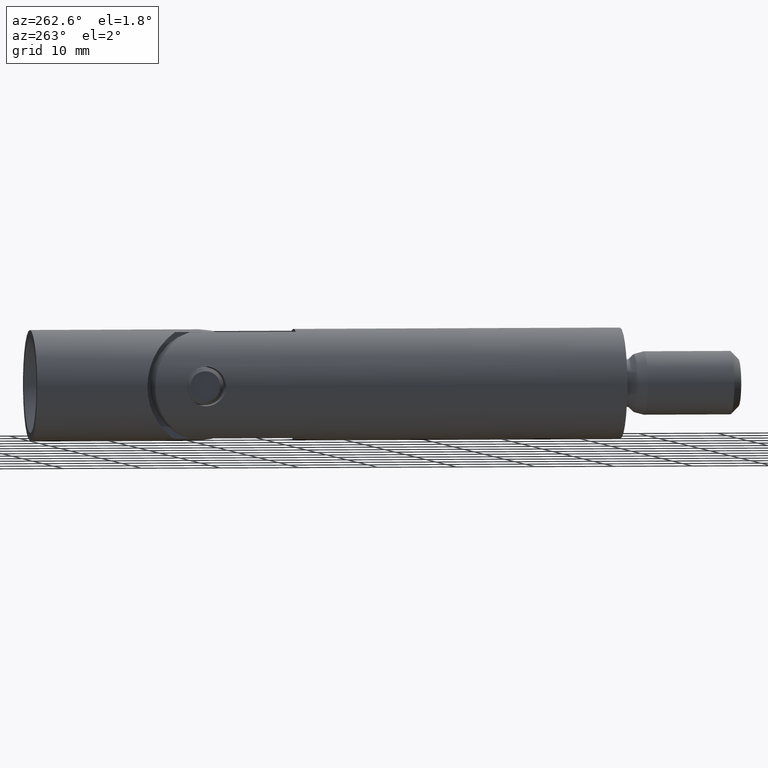
[diagram: clean part render]
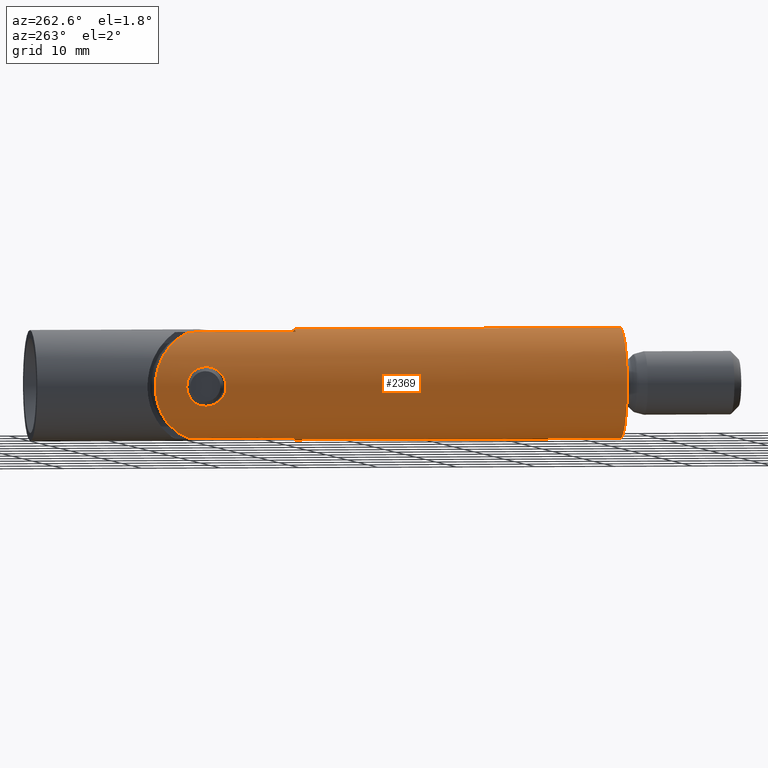
[diagram: same view with one face highlighted and labeled with its STEP entity id]
A machine part, auxiliary view. The second image highlights one B-rep face of the part: STEP entity #2369.
In plain terms, the highlighted cylindrical surface (partial cylindrical patch) has radius 7 mm, axis along (0, -1, 0).
Its self-contained STEP definition (entity closure, byte-faithful):
#25 = EDGE_CURVE ( 'NONE', #102, #1722, #1996, .T. ) ;
#48 = CARTESIAN_POINT ( 'NONE',  ( 0.0000000000000000000, 41.50000000000000700, 0.0000000000000000000 ) ) ;
#65 = CARTESIAN_POINT ( 'NONE',  ( -6.538348415311013200, 53.33519401467425100, -2.499999999999996000 ) ) ;
#96 = EDGE_CURVE ( 'NONE', #746, #1180, #1838, .T. ) ;
#102 = VERTEX_POINT ( 'NONE', #954 ) ;
#110 = CARTESIAN_POINT ( 'NONE',  ( -6.630565988376038600, 52.38798107305262200, -2.244996194563280100 ) ) ;
#118 = CARTESIAN_POINT ( 'NONE',  ( -6.833173121554277300, 51.51262594313612200, -1.525347122019572000 ) ) ;
#128 = CARTESIAN_POINT ( 'NONE',  ( -6.802524204305409900, 51.61943172811926000, 1.655173309233356300 ) ) ;
#138 = CARTESIAN_POINT ( 'NONE',  ( -6.713002675042695000, 55.02700317868689000, 1.986084006136937600 ) ) ;
#139 = VERTEX_POINT ( 'NONE', #2750 ) ;
#152 = CARTESIAN_POINT ( 'NONE',  ( -6.538348415311010500, 53.66456764569719700, 2.499999999999995600 ) ) ;
#168 = CARTESIAN_POINT ( 'NONE',  ( -6.803124002926330700, 55.38280020444109700, -1.652799647992184300 ) ) ;
#261 = ORIENTED_EDGE ( 'NONE', *, *, #25, .F. ) ;
#291 = CARTESIAN_POINT ( 'NONE',  ( -2.000000000000000000, 54.99999999999999300, -6.708203932499382700 ) ) ;
#298 = CARTESIAN_POINT ( 'NONE',  ( -10.18181818181819800, 63.18181818181818000, -4.268857047954150600 ) ) ;
#313 = CARTESIAN_POINT ( 'NONE',  ( -6.713293999746592400, 51.97163285381493100, -1.985134064349434200 ) ) ;
#339 = CARTESIAN_POINT ( 'NONE',  ( -6.538348415311013200, 53.33534744222108500, 2.499999999999995600 ) ) ;
#366 = DIRECTION ( 'NONE',  ( -0.0000000000000000000, 1.000000000000000000, -0.0000000000000000000 ) ) ;
#387 = EDGE_CURVE ( 'NONE', #455, #1879, #1490, .T. ) ;
#400 = VERTEX_POINT ( 'NONE', #1655 ) ;
#455 = VERTEX_POINT ( 'NONE', #1449 ) ;
#520 = EDGE_CURVE ( 'NONE', #1180, #139, #2311, .T. ) ;
#524 = EDGE_LOOP ( 'NONE', ( #1591, #1098, #1941, #818, #740, #1916, #1375, #1412 ) ) ;
#529 = CARTESIAN_POINT ( 'NONE',  ( -6.713011081320540400, 51.96268946594810200, 1.997803583214680800 ) ) ;
#534 = CARTESIAN_POINT ( 'NONE',  ( 0.0000000000000000000, 41.50000000000000700, -7.000000000000000000 ) ) ;
#535 = EDGE_CURVE ( 'NONE', #400, #2773, #803, .T. ) ;
#545 = CARTESIAN_POINT ( 'NONE',  ( -6.586688630397273600, 52.68972863383668000, 2.370635640661695300 ) ) ;
#547 = CARTESIAN_POINT ( 'NONE',  ( -7.000003609365455400, 56.00001010622330000, -0.1639442467922991600 ) ) ;
#549 = ORIENTED_EDGE ( 'NONE', *, *, #2404, .F. ) ;
#550 = CARTESIAN_POINT ( 'NONE',  ( -6.538348415311011400, 53.50000000000000700, 2.499999999999995100 ) ) ;
#558 = CARTESIAN_POINT ( 'NONE',  ( -6.803060434179654300, 51.61748135266695700, -1.652999685165231100 ) ) ;
#574 = LINE ( 'NONE', #1335, #601 ) ;
#578 = EDGE_CURVE ( 'NONE', #2771, #139, #574, .T. ) ;
#585 = CARTESIAN_POINT ( 'NONE',  ( -6.630891678195562900, 54.61417307946678100, 2.244056500775114300 ) ) ;
#593 = CARTESIAN_POINT ( 'NONE',  ( -6.971294840662166900, 55.91865224520973500, -0.6537964533232129000 ) ) ;
#601 = VECTOR ( 'NONE', #1095, 1000.000000000000000 ) ;
#740 = ORIENTED_EDGE ( 'NONE', *, *, #535, .F. ) ;
#743 = CARTESIAN_POINT ( 'NONE',  ( -2.000000000000000000, 54.99999999999999300, -6.708203932499382700 ) ) ;
#745 = CARTESIAN_POINT ( 'NONE',  ( -6.994088657715217900, 51.01641835356784300, -0.3295360864567826700 ) ) ;
#746 = VERTEX_POINT ( 'NONE', #2073 ) ;
#760 = DIRECTION ( 'NONE',  ( 0.0000000000000000000, 0.0000000000000000000, -1.000000000000000000 ) ) ;
#763 = AXIS2_PLACEMENT_3D ( 'NONE', #1886, #967, #760 ) ;
#773 = VECTOR ( 'NONE', #1024, 1000.000000000000000 ) ;
#796 = CARTESIAN_POINT ( 'NONE',  ( -6.887599654653780800, 55.66713404354823100, 1.256961725174125000 ) ) ;
#803 = LINE ( 'NONE', #1561, #1527 ) ;
#818 = ORIENTED_EDGE ( 'NONE', *, *, #1300, .F. ) ;
#819 = EDGE_CURVE ( 'NONE', #1879, #746, #1693, .T. ) ;
#838 = CARTESIAN_POINT ( 'NONE',  ( -6.742829180491090000, 55.15172206134482700, -1.883745608704455500 ) ) ;
#932 = CARTESIAN_POINT ( 'NONE',  ( -6.568809559002836800, 52.84780813729159400, -2.419077700821990800 ) ) ;
#946 = CARTESIAN_POINT ( 'NONE',  ( -6.994022526692883300, 51.01660247365822400, 0.3310844715906789400 ) ) ;
#950 = AXIS2_PLACEMENT_3D ( 'NONE', #48, #1969, #1788 ) ;
#951 = CARTESIAN_POINT ( 'NONE',  ( -2.000000000000000000, 54.99999999999999300, 6.708203932499382700 ) ) ;
#954 = CARTESIAN_POINT ( 'NONE',  ( -6.538348415311012300, 53.50000000000000700, -2.499999999999995100 ) ) ;
#967 = DIRECTION ( 'NONE',  ( 0.0000000000000000000, -1.000000000000000000, 0.0000000000000000000 ) ) ;
#978 = CARTESIAN_POINT ( 'NONE',  ( -6.887845714430062200, 51.33209333260024500, -1.255595542359343200 ) ) ;
#991 = CARTESIAN_POINT ( 'NONE',  ( -6.544791159009323100, 53.83169226628663800, 2.483324305821227100 ) ) ;
#1006 = CARTESIAN_POINT ( 'NONE',  ( -6.912964217126409000, 55.74556373952216100, 1.110845056745870100 ) ) ;
#1024 = DIRECTION ( 'NONE',  ( 0.0000000000000000000, -1.000000000000000000, 0.0000000000000000000 ) ) ;
#1079 = AXIS2_PLACEMENT_3D ( 'NONE', #1674, #366, #2570 ) ;
#1095 = DIRECTION ( 'NONE',  ( 0.0000000000000000000, -1.000000000000000000, 0.0000000000000000000 ) ) ;
#1098 = ORIENTED_EDGE ( 'NONE', *, *, #819, .F. ) ;
#1180 = VERTEX_POINT ( 'NONE', #1347 ) ;
#1190 = CARTESIAN_POINT ( 'NONE',  ( 8.572527594031484000E-016, 0.0000000000000000000, 7.000000000000009800 ) ) ;
#1201 = CARTESIAN_POINT ( 'NONE',  ( -6.568723425847320400, 52.84874567028190000, 2.419310034521272400 ) ) ;
#1208 = CARTESIAN_POINT ( 'NONE',  ( -6.912413640948227700, 51.25611888300165500, 1.114366224250470200 ) ) ;
#1227 = CARTESIAN_POINT ( 'NONE',  ( -6.971277688676971200, 55.91860301743768200, 0.6539880238683699600 ) ) ;
#1238 = B_SPLINE_CURVE_WITH_KNOTS ( 'NONE', 3,
 ( #2091, #152, #991, #2525, #2734, #585, #1436, #138, #2100, #2325, #1667, #796, #1006, #2536, #1227, #2753, #1452, #547, #1903, #593, #2769, #1275, #2134, #2794, #168, #838, #2804, #2562, #1482, #1258, #2331, #2759, #1244, #2780 ),
 .UNSPECIFIED., .F., .F.,
 ( 4, 2, 2, 2, 2, 2, 2, 2, 2, 2, 2, 2, 2, 2, 2, 2, 4 ),
 ( 0.003942211181207921200, 0.004434638290087018900, 0.004927065398966115800, 0.005419492507845213500, 0.005911919616724310400, 0.006404346725603408100, 0.006896773834482505800, 0.007389200943361602700, 0.007881628052240699500, 0.008374055161119798100, 0.008866482269998895000, 0.009358909378877993500, 0.009851336487757090400, 0.01034376359663618700, 0.01083619070551528400, 0.01132861781439438100, 0.01182104492327348000 ),
 .UNSPECIFIED. ) ;
#1244 = CARTESIAN_POINT ( 'NONE',  ( -6.538348415311014100, 53.66472099412074900, -2.499999999999995100 ) ) ;
#1258 = CARTESIAN_POINT ( 'NONE',  ( -6.586518606151291700, 54.30913794024785100, -2.371125453064278200 ) ) ;
#1275 = CARTESIAN_POINT ( 'NONE',  ( -6.912779065170285600, 55.74500075489552800, -1.112074036893765400 ) ) ;
#1300 = EDGE_CURVE ( 'NONE', #2773, #455, #2297, .T. ) ;
#1335 = CARTESIAN_POINT ( 'NONE',  ( 0.0000000000000000000, 0.0000000000000000000, -7.000000000000009800 ) ) ;
#1347 = CARTESIAN_POINT ( 'NONE',  ( 8.572527594031474200E-016, 0.0000000000000000000, 7.000000000000000900 ) ) ;
#1366 = CARTESIAN_POINT ( 'NONE',  ( -10.18181818181819800, 63.18181818181818000, 4.268857047954150600 ) ) ;
#1375 = ORIENTED_EDGE ( 'NONE', *, *, #578, .T. ) ;
#1400 = CARTESIAN_POINT ( 'NONE',  ( -6.586764103214064500, 52.68904863335128400, -2.370432848326097900 ) ) ;
#1412 = ORIENTED_EDGE ( 'NONE', *, *, #520, .F. ) ;
#1416 = CARTESIAN_POINT ( 'NONE',  ( -7.000018365474410600, 50.99994857666951000, -0.1659064542357326600 ) ) ;
#1436 = CARTESIAN_POINT ( 'NONE',  ( -6.656927509154720600, 54.75778283289697900, 2.166621963431201200 ) ) ;
#1449 = CARTESIAN_POINT ( 'NONE',  ( -2.000000000000000000, 54.99999999999999300, 6.708203932499382700 ) ) ;
#1452 = CARTESIAN_POINT ( 'NONE',  ( -6.999996387244858700, 55.99998988428559000, 0.1642523234070809900 ) ) ;
#1482 = CARTESIAN_POINT ( 'NONE',  ( -6.630574512559651800, 54.61220286988348200, -2.244982159559570300 ) ) ;
#1490 = LINE ( 'NONE', #2706, #1863 ) ;
#1527 = VECTOR ( 'NONE', #2650, 1000.000000000000000 ) ;
#1554 = CARTESIAN_POINT ( 'NONE',  ( 0.0000000000000000000, 0.0000000000000000000, 0.0000000000000000000 ) ) ;
#1561 = CARTESIAN_POINT ( 'NONE',  ( -1.999999999999992700, 0.0000000000000000000, -6.708203932499382700 ) ) ;
#1591 = ORIENTED_EDGE ( 'NONE', *, *, #96, .F. ) ;
#1623 = CARTESIAN_POINT ( 'NONE',  ( -6.656791156367127400, 52.24283719988541500, -2.167072929318828200 ) ) ;
#1635 = CARTESIAN_POINT ( 'NONE',  ( -6.544575533785348400, 53.17216822282913600, 2.483892020798990100 ) ) ;
#1646 = DIRECTION ( 'NONE',  ( 0.0000000000000000000, -1.000000000000000000, 0.0000000000000000000 ) ) ;
#1650 = CARTESIAN_POINT ( 'NONE',  ( -6.538348415311011400, 53.50000000000000700, 2.499999999999995100 ) ) ;
#1655 = CARTESIAN_POINT ( 'NONE',  ( -1.999999999999998700, 41.50000000000000700, -6.708203932499382700 ) ) ;
#1667 = CARTESIAN_POINT ( 'NONE',  ( -6.832805419113038100, 55.48611954710167300, 1.527007493720678600 ) ) ;
#1674 = CARTESIAN_POINT ( 'NONE',  ( 0.0000000000000000000, 41.50000000000000700, 0.0000000000000000000 ) ) ;
#1693 = CIRCLE ( 'NONE', #1079, 7.000000000000009800 ) ;
#1707 = CARTESIAN_POINT ( 'NONE',  ( -1.999999999999998700, 41.50000000000000700, 6.708203932499381800 ) ) ;
#1722 = VERTEX_POINT ( 'NONE', #550 ) ;
#1788 = DIRECTION ( 'NONE',  ( 0.0000000000000000000, 0.0000000000000000000, -1.000000000000000000 ) ) ;
#1838 = LINE ( 'NONE', #1190, #773 ) ;
#1846 = CYLINDRICAL_SURFACE ( 'NONE', #763, 7.000000000000009800 ) ;
#1860 = CARTESIAN_POINT ( 'NONE',  ( -6.971377729647519700, 51.08111190432909200, 0.6525799428350304000 ) ) ;
#1863 = VECTOR ( 'NONE', #1646, 1000.000000000000000 ) ;
#1879 = VERTEX_POINT ( 'NONE', #1707 ) ;
#1886 = CARTESIAN_POINT ( 'NONE',  ( 0.0000000000000000000, 0.0000000000000000000, 0.0000000000000000000 ) ) ;
#1903 = CARTESIAN_POINT ( 'NONE',  ( -6.994122310226766000, 55.98368150498951900, -0.3296280743643733600 ) ) ;
#1908 = EDGE_LOOP ( 'NONE', ( #261, #549 ) ) ;
#1916 = ORIENTED_EDGE ( 'NONE', *, *, #2093, .F. ) ;
#1941 = ORIENTED_EDGE ( 'NONE', *, *, #387, .F. ) ;
#1969 = DIRECTION ( 'NONE',  ( -0.0000000000000000000, 1.000000000000000000, -0.0000000000000000000 ) ) ;
#1996 = B_SPLINE_CURVE_WITH_KNOTS ( 'NONE', 3,
 ( #2007, #65, #2026, #932, #1400, #110, #1623, #313, #2065, #558, #118, #978, #2056, #2503, #2720, #745, #1416, #2279, #946, #1860, #2087, #1208, #2701, #2473, #128, #529, #2290, #545, #1201, #1635, #339, #1650 ),
 .UNSPECIFIED., .F., .F.,
 ( 4, 2, 2, 2, 2, 2, 2, 2, 2, 2, 2, 2, 2, 2, 2, 4 ),
 ( 0.01182104492327348000, 0.01231372611010781100, 0.01280640729694214200, 0.01329908848377647300, 0.01379176967061080400, 0.01428445085744513500, 0.01477713204427946400, 0.01526981323111379500, 0.01576249441794812600, 0.01625517560478245700, 0.01674785679161678800, 0.01724053797845111900, 0.01773321916528545000, 0.01871858153895412900, 0.01921126272578846700, 0.01970394391262280500 ),
 .UNSPECIFIED. ) ;
#2007 = CARTESIAN_POINT ( 'NONE',  ( -6.538348415311012300, 53.50000000000000700, -2.499999999999995100 ) ) ;
#2026 = CARTESIAN_POINT ( 'NONE',  ( -6.544587326596992000, 53.17179506586584400, -2.483862449816268500 ) ) ;
#2056 = CARTESIAN_POINT ( 'NONE',  ( -6.912706709443597200, 51.25521584719491100, -1.112608434148856000 ) ) ;
#2065 = CARTESIAN_POINT ( 'NONE',  ( -6.743219394607997700, 51.84674472924677200, -1.882294192319467800 ) ) ;
#2073 = CARTESIAN_POINT ( 'NONE',  ( 8.572527594031473200E-016, 41.50000000000000700, 7.000000000000000000 ) ) ;
#2087 = CARTESIAN_POINT ( 'NONE',  ( -6.954400564734760000, 51.12993094226397500, 0.8121497463733130500 ) ) ;
#2091 = CARTESIAN_POINT ( 'NONE',  ( -6.538348415311011400, 53.50000000000000700, 2.499999999999995100 ) ) ;
#2093 = EDGE_CURVE ( 'NONE', #2771, #400, #2631, .T. ) ;
#2100 = CARTESIAN_POINT ( 'NONE',  ( -6.743439541038620500, 55.15415760848126300, 1.881518315420022800 ) ) ;
#2134 = CARTESIAN_POINT ( 'NONE',  ( -6.887378446017281800, 55.66642792132731900, -1.258145585093683100 ) ) ;
#2224 = FACE_OUTER_BOUND ( 'NONE', #524, .T. ) ;
#2279 = CARTESIAN_POINT ( 'NONE',  ( -6.999981549145928700, 51.00005166239356700, 0.1674526206206288500 ) ) ;
#2290 = CARTESIAN_POINT ( 'NONE',  ( -6.652159368933354200, 52.23924048218311400, 2.183185184228069600 ) ) ;
#2297 =( BOUNDED_CURVE ( )  B_SPLINE_CURVE ( 3, ( #291, #298, #1366, #951 ),
 .UNSPECIFIED., .F., .T. ) 
 B_SPLINE_CURVE_WITH_KNOTS ( ( 4, 4 ),
 ( 1.860548028230943700, 4.422637278948642800 ),
 .UNSPECIFIED. ) 
 CURVE ( )  GEOMETRIC_REPRESENTATION_ITEM ( )  RATIONAL_B_SPLINE_CURVE ( ( 1.000000000000000000, 0.5238095238095233900, 0.5238095238095233900, 1.000000000000000000 ) ) 
 REPRESENTATION_ITEM ( '' )  );
#2311 = CIRCLE ( 'NONE', #2689, 7.000000000000009800 ) ;
#2325 = CARTESIAN_POINT ( 'NONE',  ( -6.803351252801217400, 55.38357341748209700, 1.651817104255875400 ) ) ;
#2331 = CARTESIAN_POINT ( 'NONE',  ( -6.568934039161713500, 54.15310330112175300, -2.418737810135713300 ) ) ;
#2369 = ADVANCED_FACE ( 'NONE', ( #2224, #2756 ), #1846, .T. ) ;
#2404 = EDGE_CURVE ( 'NONE', #1722, #102, #1238, .T. ) ;
#2425 = DIRECTION ( 'NONE',  ( 0.0000000000000000000, 0.0000000000000000000, -1.000000000000000000 ) ) ;
#2473 = CARTESIAN_POINT ( 'NONE',  ( -6.832544973003122000, 51.51476360543982500, 1.528204561839530400 ) ) ;
#2503 = CARTESIAN_POINT ( 'NONE',  ( -6.954720590168834700, 51.12899170621091100, -0.8094894015410811800 ) ) ;
#2525 = CARTESIAN_POINT ( 'NONE',  ( -6.568957836385555600, 54.15340301551108100, 2.418673989341651800 ) ) ;
#2536 = CARTESIAN_POINT ( 'NONE',  ( -6.954627560028416900, 55.87072283063485400, 0.8100657434184327400 ) ) ;
#2562 = CARTESIAN_POINT ( 'NONE',  ( -6.656795899600603600, 54.75706456936632800, -2.167015869289591600 ) ) ;
#2570 = DIRECTION ( 'NONE',  ( 4.440892098500626200E-015, 0.0000000000000000000, -1.000000000000000000 ) ) ;
#2631 = CIRCLE ( 'NONE', #950, 7.000000000000009800 ) ;
#2639 = DIRECTION ( 'NONE',  ( 0.0000000000000000000, -1.000000000000000000, 0.0000000000000000000 ) ) ;
#2650 = DIRECTION ( 'NONE',  ( -0.0000000000000000000, 1.000000000000000000, -0.0000000000000000000 ) ) ;
#2689 = AXIS2_PLACEMENT_3D ( 'NONE', #1554, #2639, #2425 ) ;
#2701 = CARTESIAN_POINT ( 'NONE',  ( -6.887514385660946200, 51.33312502740408000, 1.257467923348688500 ) ) ;
#2706 = CARTESIAN_POINT ( 'NONE',  ( -1.999999999999992700, 0.0000000000000000000, 6.708203932499382700 ) ) ;
#2720 = CARTESIAN_POINT ( 'NONE',  ( -6.971571512549625800, 51.08055564289906400, -0.6504312643657450500 ) ) ;
#2734 = CARTESIAN_POINT ( 'NONE',  ( -6.586596810368878800, 54.30988563723948900, 2.370918911365955200 ) ) ;
#2750 = CARTESIAN_POINT ( 'NONE',  ( 0.0000000000000000000, 0.0000000000000000000, -7.000000000000000900 ) ) ;
#2753 = CARTESIAN_POINT ( 'NONE',  ( -6.994117365896198800, 55.98366778600603100, 0.3297502389351640900 ) ) ;
#2756 = FACE_BOUND ( 'NONE', #1908, .T. ) ;
#2759 = CARTESIAN_POINT ( 'NONE',  ( -6.544807042027980700, 53.83188661988361900, -2.483281656932708100 ) ) ;
#2769 = CARTESIAN_POINT ( 'NONE',  ( -6.954626818691521900, 55.87072735102294300, -0.8101783014413818100 ) ) ;
#2771 = VERTEX_POINT ( 'NONE', #534 ) ;
#2773 = VERTEX_POINT ( 'NONE', #743 ) ;
#2780 = CARTESIAN_POINT ( 'NONE',  ( -6.538348415311012300, 53.50000000000000700, -2.499999999999995100 ) ) ;
#2794 = CARTESIAN_POINT ( 'NONE',  ( -6.832648139262723000, 55.48557514957591500, -1.527688311464025200 ) ) ;
#2804 = CARTESIAN_POINT ( 'NONE',  ( -6.712745980858544600, 55.02585657456698000, -1.986940065316468400 ) ) ;